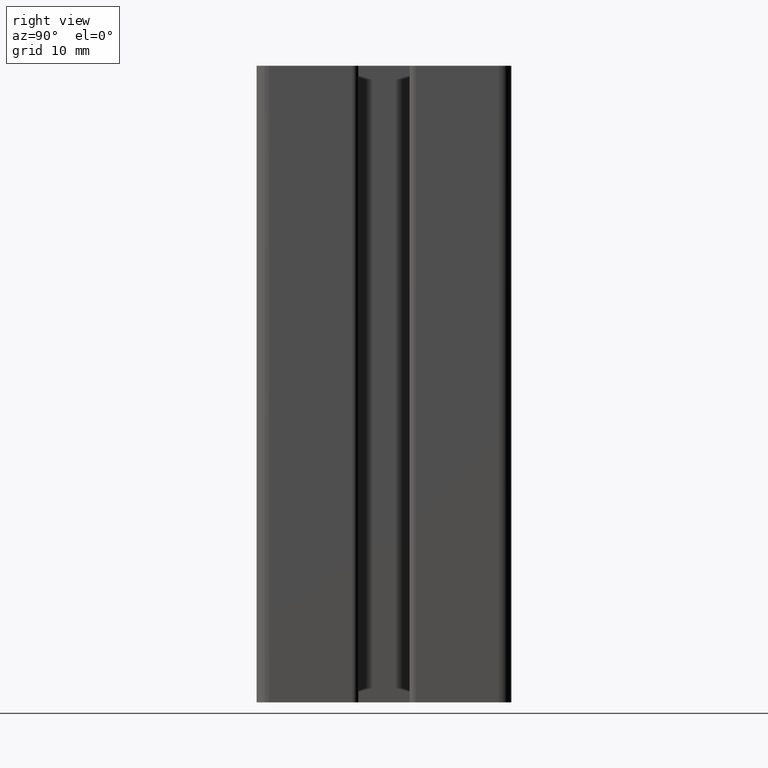
[diagram: clean part render]
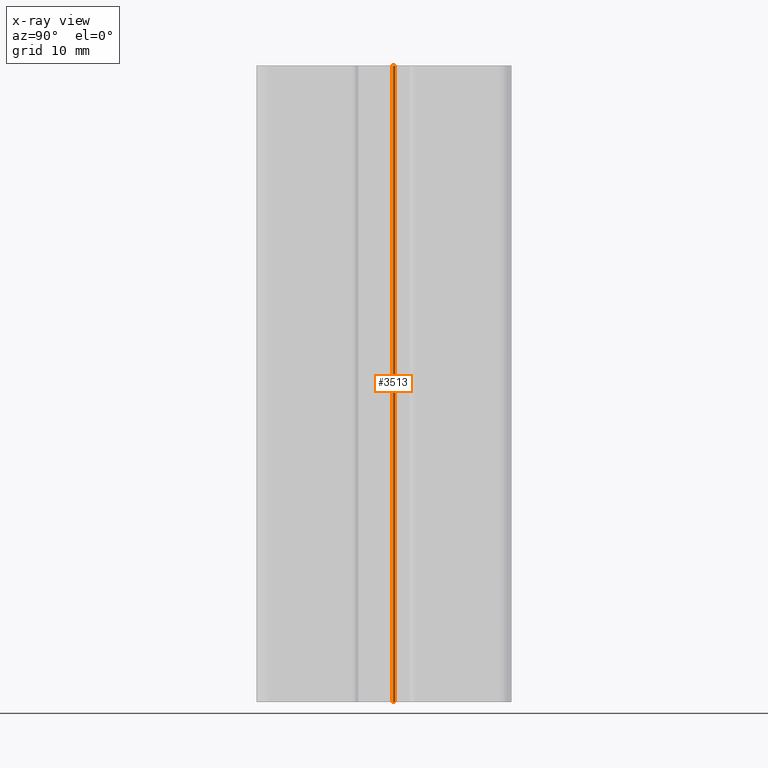
[diagram: x-ray — body ghosted, one internal face saturated and labeled with its STEP entity id]
A machine part, right view, then the same camera in x-ray: the body is ghosted and one INTERNAL B-rep face — a face not visible from any outside direction — is saturated and labeled: STEP entity #3513.
In plain terms, the highlighted cylindrical surface (edge-blend (fillet) strip) has radius 0.3 mm, axis along (0, 0, 1).
Its self-contained STEP definition (entity closure, byte-faithful):
#150=FACE_OUTER_BOUND('',#333,.T.);
#333=EDGE_LOOP('',(#2433,#2434,#2435,#2436));
#552=LINE('',#5315,#915);
#553=LINE('',#5321,#916);
#915=VECTOR('',#4229,100.);
#916=VECTOR('',#4236,100.);
#1258=CIRCLE('',#3737,0.299999999999998);
#1259=CIRCLE('',#3738,0.299999999999998);
#1464=VERTEX_POINT('',#5311);
#1465=VERTEX_POINT('',#5313);
#1466=VERTEX_POINT('',#5317);
#1467=VERTEX_POINT('',#5319);
#1858=EDGE_CURVE('',#1465,#1464,#552,.T.);
#1859=EDGE_CURVE('',#1464,#1466,#1258,.T.);
#1860=EDGE_CURVE('',#1467,#1465,#1259,.T.);
#1861=EDGE_CURVE('',#1467,#1466,#553,.T.);
#2433=ORIENTED_EDGE('',*,*,#1859,.F.);
#2434=ORIENTED_EDGE('',*,*,#1858,.F.);
#2435=ORIENTED_EDGE('',*,*,#1860,.F.);
#2436=ORIENTED_EDGE('',*,*,#1861,.T.);
#3410=CYLINDRICAL_SURFACE('',#3736,0.299999999999998);
#3513=ADVANCED_FACE('',(#150),#3410,.T.);
#3736=AXIS2_PLACEMENT_3D('',#5316,#4230,#4231);
#3737=AXIS2_PLACEMENT_3D('',#5318,#4232,#4233);
#3738=AXIS2_PLACEMENT_3D('',#5320,#4234,#4235);
#4229=DIRECTION('',(0.,0.,1.));
#4230=DIRECTION('center_axis',(0.,0.,1.));
#4231=DIRECTION('ref_axis',(0.917710708027526,-0.39724936295936,0.));
#4232=DIRECTION('center_axis',(0.,0.,1.));
#4233=DIRECTION('ref_axis',(0.917710708027526,-0.39724936295936,0.));
#4234=DIRECTION('center_axis',(0.,0.,-1.));
#4235=DIRECTION('ref_axis',(0.917710708027526,-0.39724936295936,0.));
#4236=DIRECTION('',(0.,0.,1.));
#5311=CARTESIAN_POINT('',(-3.12021703776182,1.35063624338412,100.));
#5313=CARTESIAN_POINT('',(-3.12021703776182,1.35063624338412,0.));
#5315=CARTESIAN_POINT('',(-3.12021703776182,1.35063624338412,0.));
#5316=CARTESIAN_POINT('Origin',(-3.39553025017007,1.46981105227192,0.));
#5317=CARTESIAN_POINT('',(-3.2455301987096,1.72961864369653,100.));
#5318=CARTESIAN_POINT('Origin',(-3.39553025017007,1.46981105227192,100.));
#5319=CARTESIAN_POINT('',(-3.2455301987096,1.72961864369653,0.));
#5320=CARTESIAN_POINT('Origin',(-3.39553025017007,1.46981105227192,0.));
#5321=CARTESIAN_POINT('',(-3.2455301987096,1.72961864369653,0.));